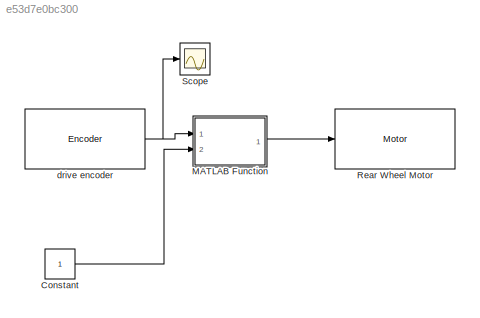
MODEL slx_e53d7e0bc300
KIND model
BLOCK [Constant] Constant
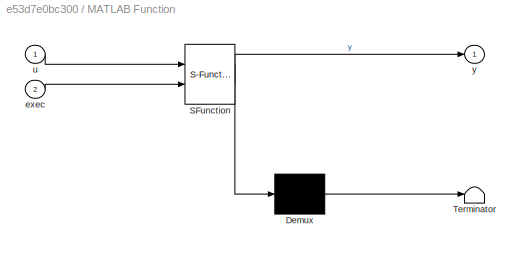
BLOCK [SubSystem] MATLAB Function
  ErrorFcn = Stateflow.Translate.translate
  FunctionWithSeparateData = off
  MaskHideContents = off
  MinAlgLoopOccurrences = off
  Opaque = off
  PermitHierarchicalResolution = ExplicitOnly
  Ports = [2, 1]
  PropExecContextOutsideSubsystem = off
  RTWSystemCode = Auto
  RequestExecContextInheritance = off
  SFBlockType = MATLAB Function
  TreatAsAtomicUnit = on
BLOCK [Demux] MATLAB Function/ Demux 
  Outputs = 1
  Ports = [1, 1]
BLOCK [S-Function] MATLAB Function/ SFunction 
  EnableBusSupport = on
  FunctionName = sf_sfun
  PortCounts = [2 2]
  Ports = [2, 2]
  Tag = Stateflow S-Function pathfollower 2
BLOCK [Terminator] MATLAB Function/ Terminator 
BLOCK [Inport] MATLAB Function/exec
  IconDisplay = Port number
  Port = 2
BLOCK [Inport] MATLAB Function/u
  IconDisplay = Port number
BLOCK [Outport] MATLAB Function/y
  IconDisplay = Port number
BLOCK [Reference] Rear Wheel Motor  REF=legonxtlib/Motor
  Ports = [1]
  SourceBlock = legonxtlib/Motor
  SourceType = LEGO MINDSTORMS NXT Motor
  sportNumber = C
  sstopAction = Brake
BLOCK [Scope] Scope
  DataFormat = StructureWithTime
  Floating = off
  NumInputPorts = 1
  Ports = [1]
  SampleTime = 0
  ShowLegends = off
  YMax = 3570
  YMin = 3570
BLOCK [Reference] drive encoder  REF=legonxtlib/Encoder
  Ports = [0, 1]
  SourceBlock = legonxtlib/Encoder
  SourceType = LEGO MINDSTORMS NXT Encoder
  opMode = No reset
  portNumber = C
  sampleTime = 0.1
LINE Constant:1 -> MATLAB Function:2
LINE MATLAB Function:1 -> Rear Wheel Motor:1
NET drive encoder:1 -> MATLAB Function:1, Scope:1
note: NET lines group one-source signal fan-out (src -> all destinations, sorted); 1:1 wires keep LINE
